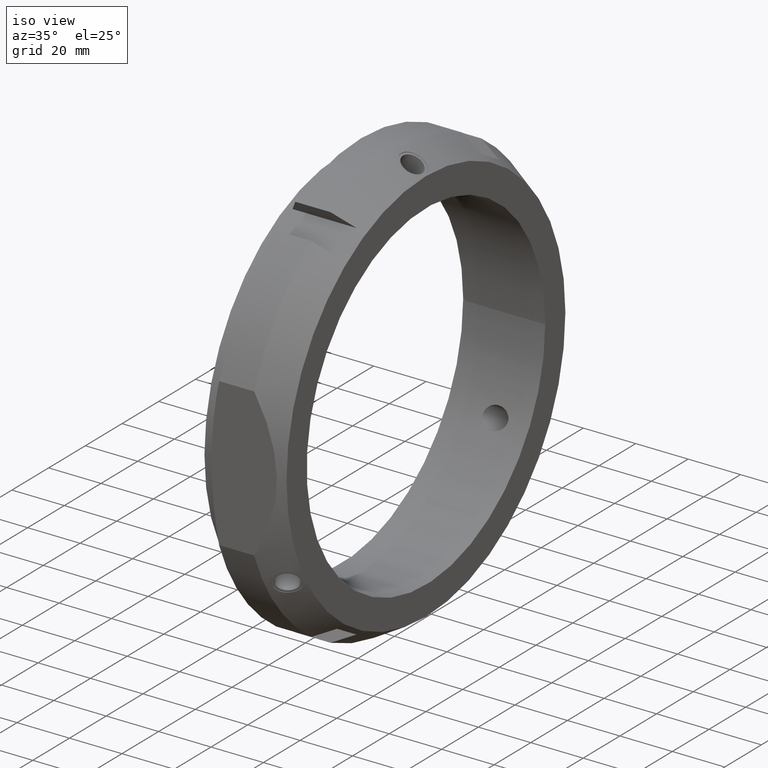
[diagram: clean part render]
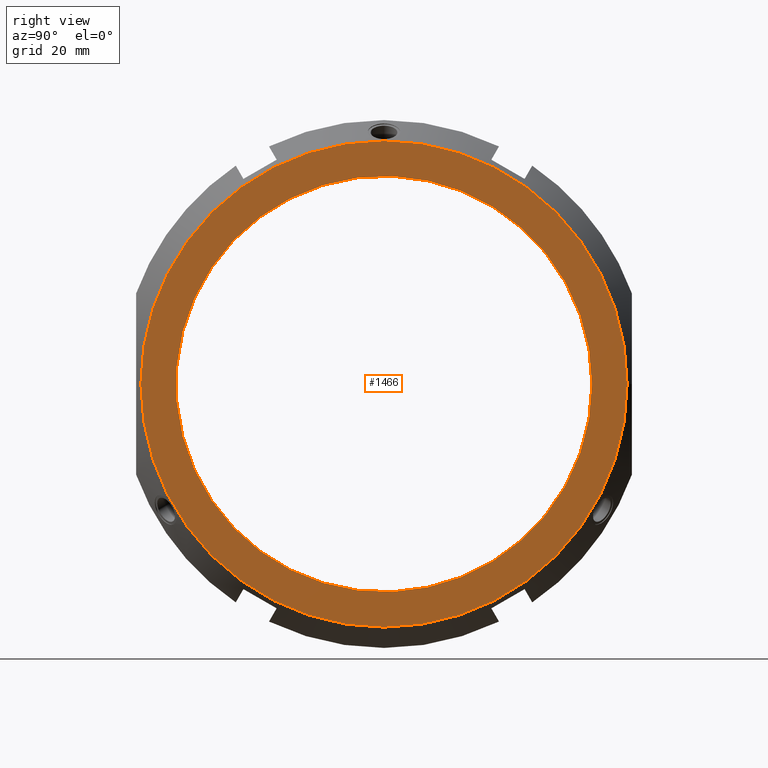
[diagram: tour spotlight — one face highlighted and labeled with its STEP entity id]
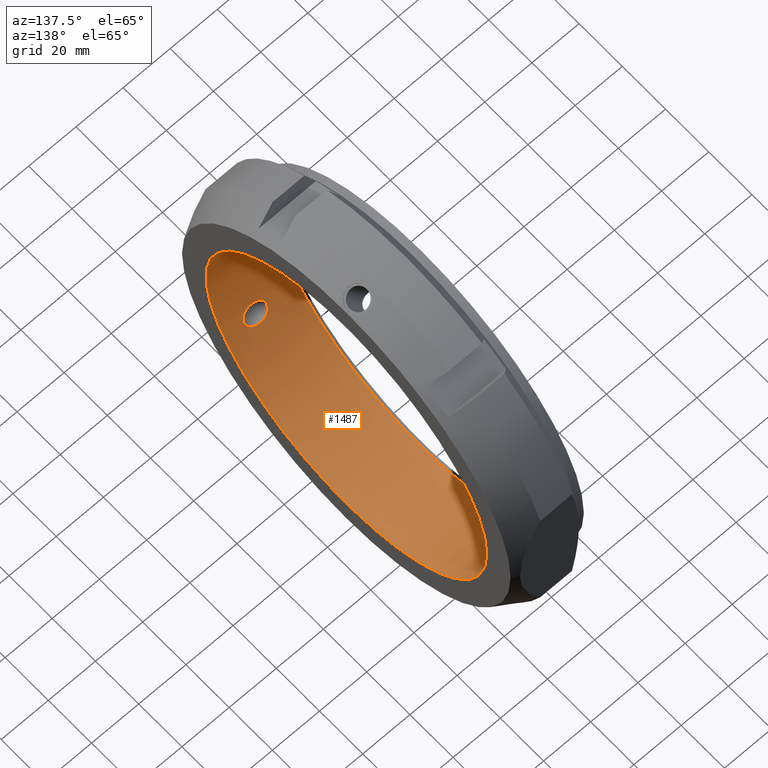
[diagram: tour spotlight — one face highlighted and labeled with its STEP entity id]
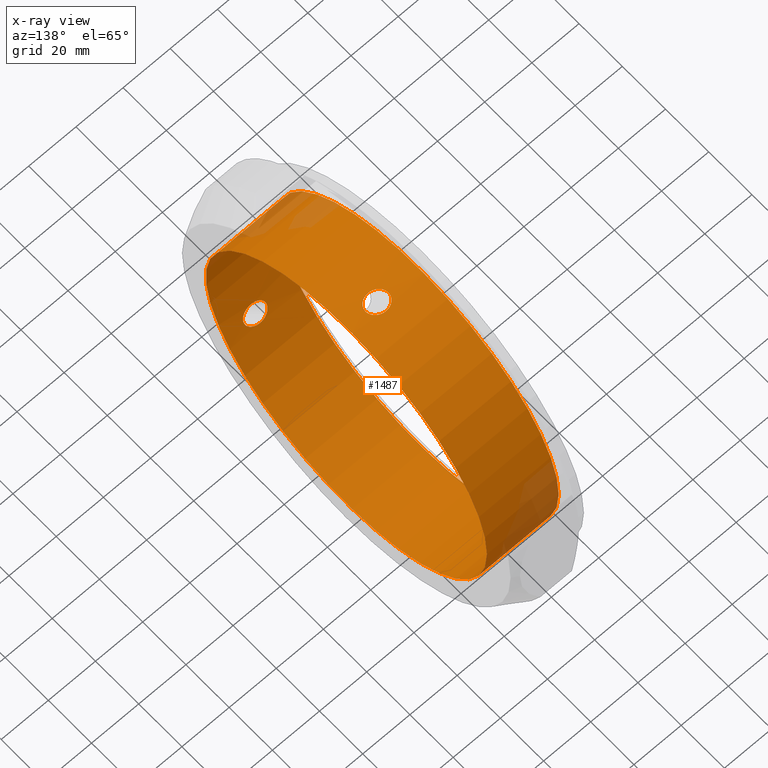
[diagram: x-ray of the same camera — body ghosted, this tour face saturated]
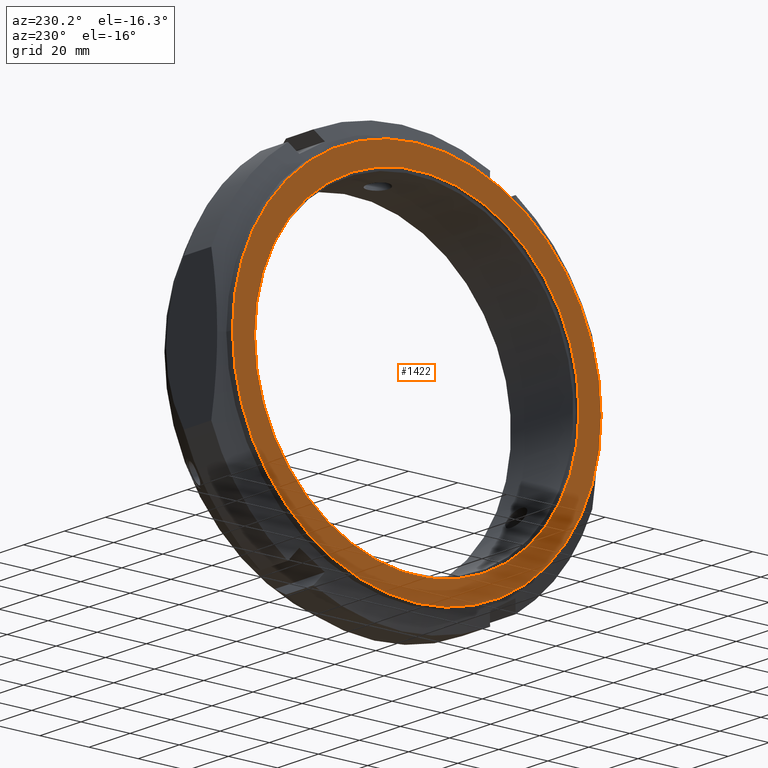
[diagram: tour spotlight — one face highlighted and labeled with its STEP entity id]
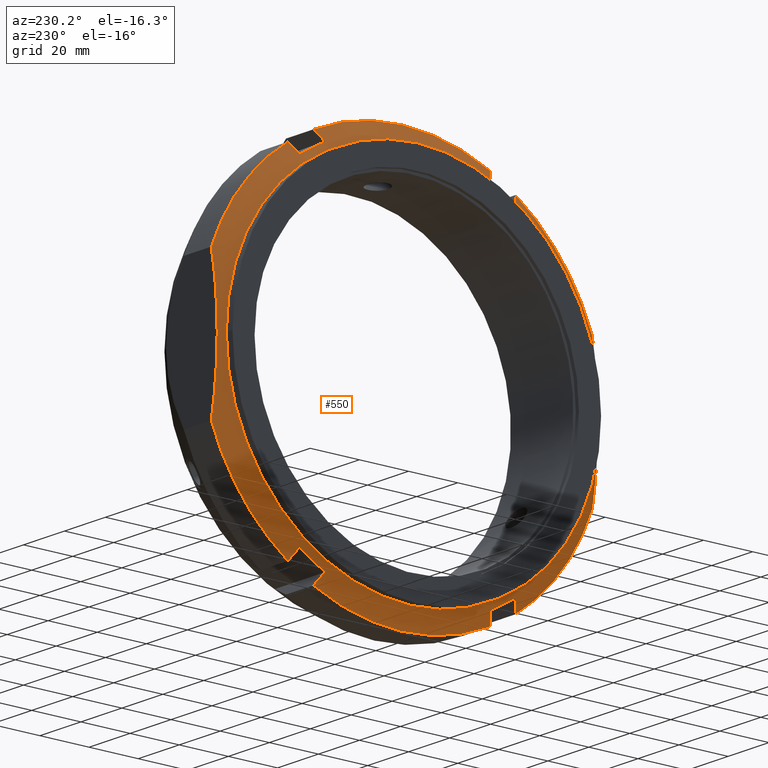
[diagram: tour spotlight — one face highlighted and labeled with its STEP entity id]
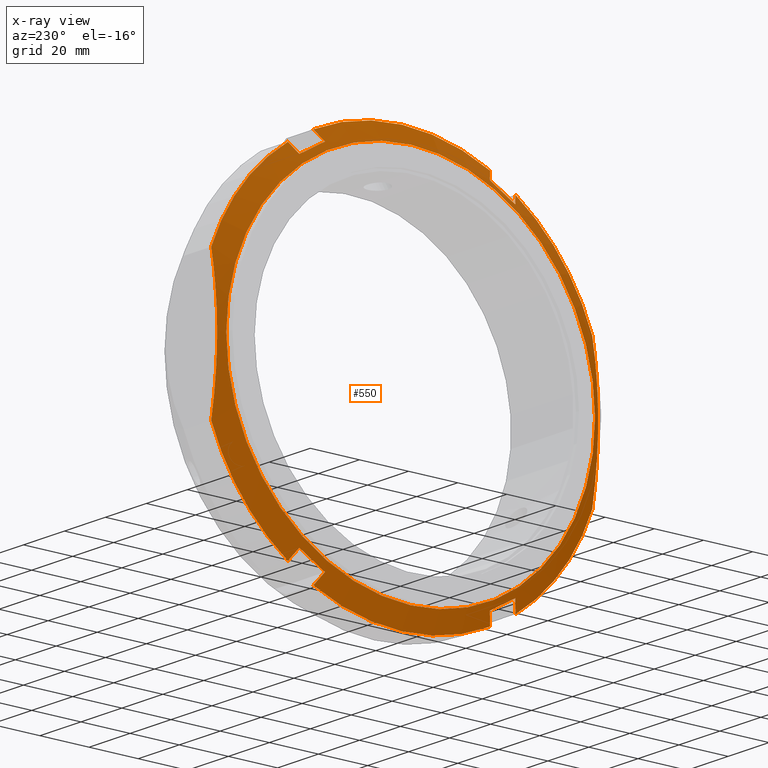
[diagram: x-ray of the same camera — body ghosted, this tour face saturated]
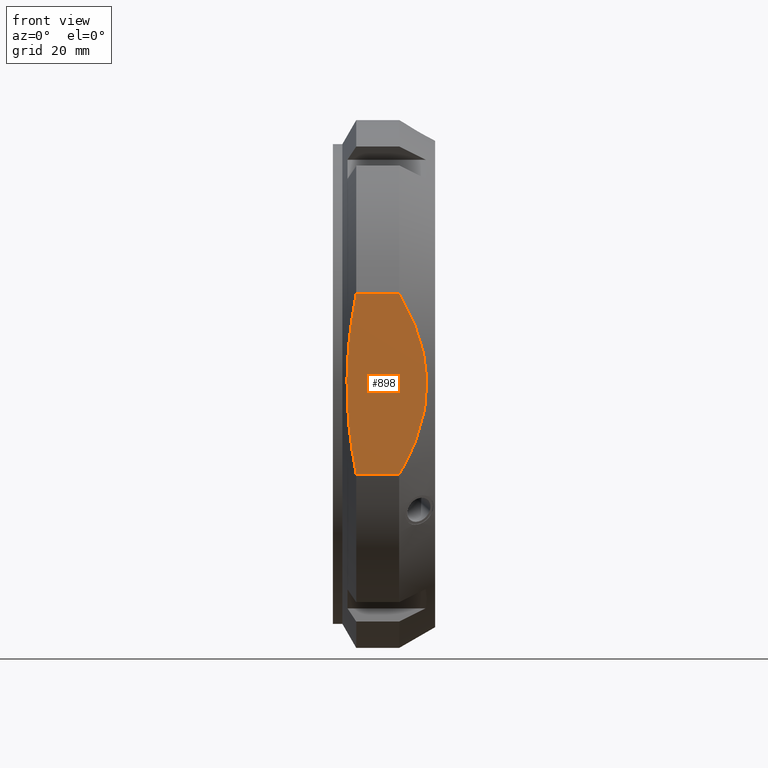
[diagram: tour spotlight — one face highlighted and labeled with its STEP entity id]
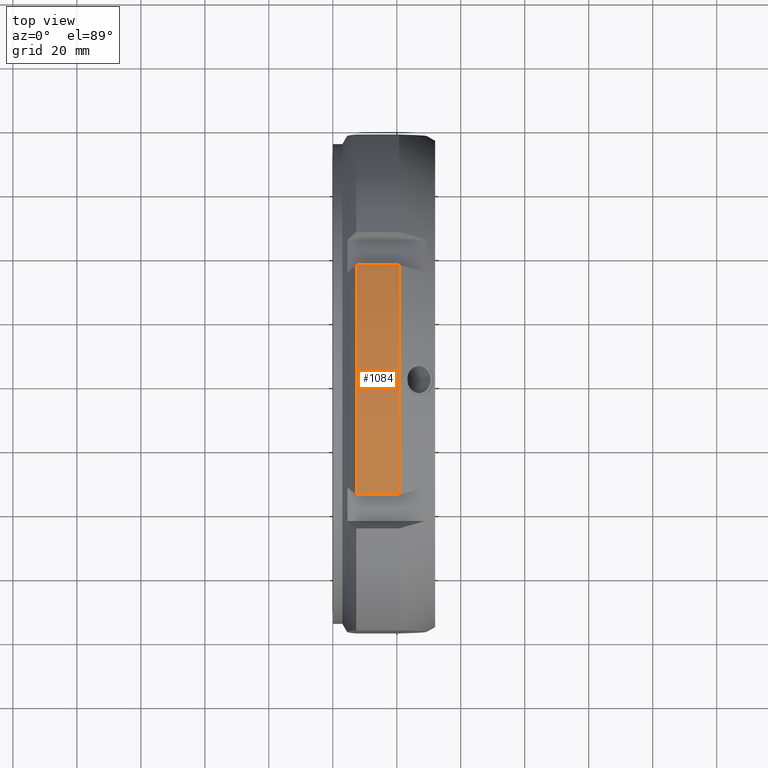
[diagram: tour spotlight — one face highlighted and labeled with its STEP entity id]
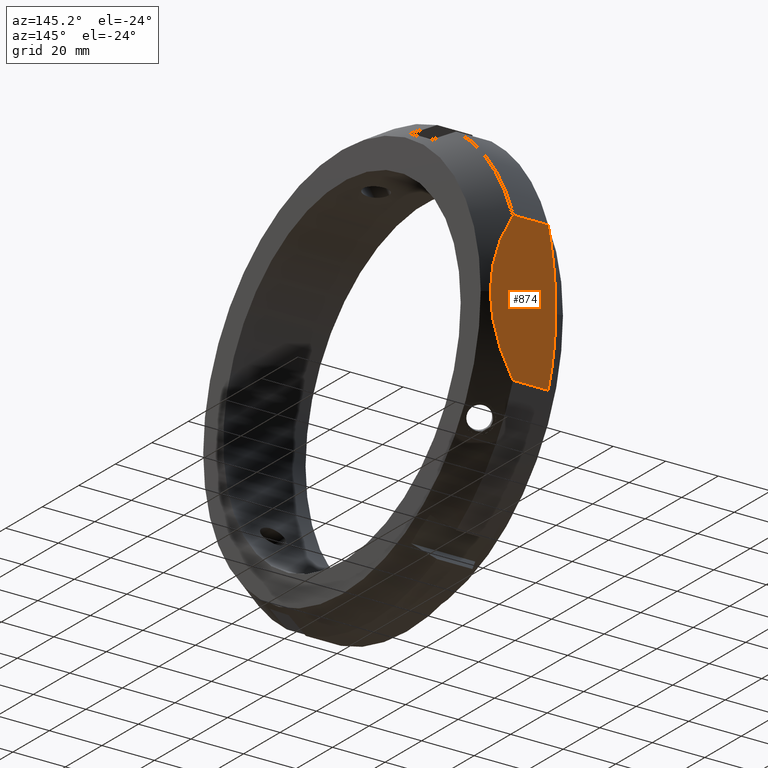
[diagram: tour spotlight — one face highlighted and labeled with its STEP entity id]
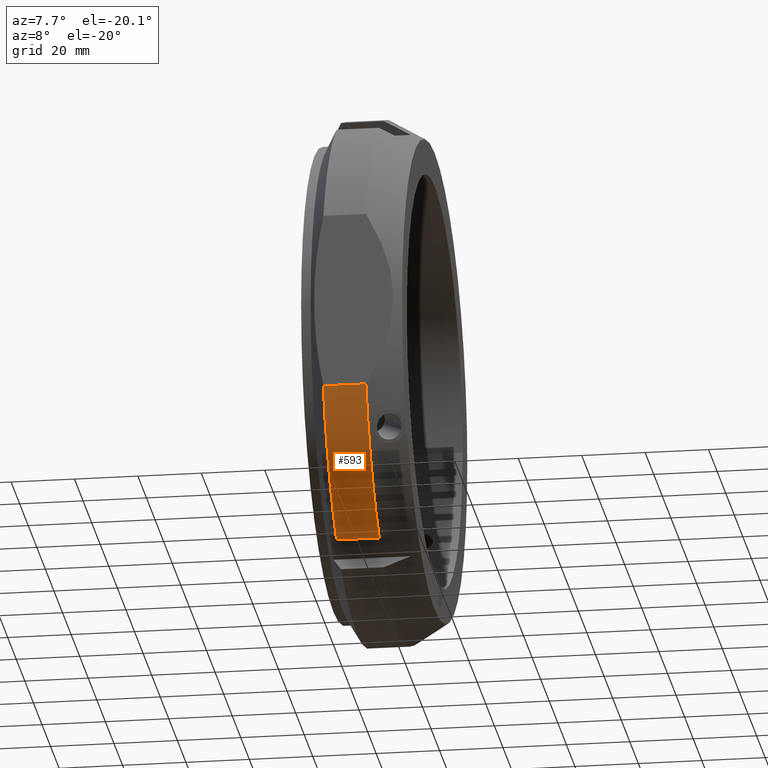
[diagram: tour spotlight — one face highlighted and labeled with its STEP entity id]
A machine part: a face-by-face anatomy tour. The part has 37 B-rep faces; the first image is the clean iso view, then the 8 largest visible faces are spotlighted one at a time (largest first), each with its STEP entity span.

Face 1 — right view, entity #1466. In plain terms, the highlighted planar face has unit normal (1, 0, 0).
Definition (entity closure, byte-faithful):
#938=CARTESIAN_POINT('',(31.999999999999986,76.0,0.0));
#939=VERTEX_POINT('',#938);
#940=CARTESIAN_POINT('',(31.999999999999986,0.0,0.0));
#941=DIRECTION('',(1.0,0.0,0.0));
#942=DIRECTION('',(0.0,1.0,0.0));
#943=AXIS2_PLACEMENT_3D('',#940,#941,#942);
#944=CIRCLE('',#943,76.0);
#945=EDGE_CURVE('',#939,#939,#944,.T.);
#1447=CARTESIAN_POINT('',(31.999999999999986,70.5,0.0));
#1448=DIRECTION('',(1.0,0.0,0.0));
#1449=DIRECTION('',(0.0,0.0,-1.0));
#1450=AXIS2_PLACEMENT_3D('',#1447,#1448,#1449);
#1451=PLANE('',#1450);
#1452=ORIENTED_EDGE('',*,*,#945,.T.);
#1453=EDGE_LOOP('',(#1452));
#1454=FACE_OUTER_BOUND('',#1453,.T.);
#1455=CARTESIAN_POINT('',(31.999999999999986,65.0,0.0));
#1456=VERTEX_POINT('',#1455);
#1457=CARTESIAN_POINT('',(31.999999999999986,0.0,0.0));
#1458=DIRECTION('',(1.0,0.0,0.0));
#1459=DIRECTION('',(0.0,1.0,0.0));
#1460=AXIS2_PLACEMENT_3D('',#1457,#1458,#1459);
#1461=CIRCLE('',#1460,65.0);
#1462=EDGE_CURVE('',#1456,#1456,#1461,.T.);
#1463=ORIENTED_EDGE('',*,*,#1462,.F.);
#1464=EDGE_LOOP('',(#1463));
#1465=FACE_BOUND('',#1464,.T.);
#1466=ADVANCED_FACE('',(#1454,#1465),#1451,.T.);

Face 2 — auxiliary view, entity #1487. An x-ray twin of the same camera follows (body ghosted, this face saturated) — the face is partly hidden behind the body. In plain terms, the highlighted cylindrical surface (bore or boss wall) has radius 65 mm, axis along (1, 0, 0).
Definition (entity closure, byte-faithful):
#1090=CARTESIAN_POINT('',(18.949791525899521,58.268687288849222,-28.805556436810946));
#1091=VERTEX_POINT('',#1090);
#1092=CARTESIAN_POINT('',(18.949791525899521,58.268687288849222,-28.805556436810946));
#1093=CARTESIAN_POINT('',(19.546106506333146,58.268687288849222,-28.805556436810946));
#1094=CARTESIAN_POINT('',(20.187992544273769,58.224201286156287,-28.896138006077138));
#1095=CARTESIAN_POINT('',(21.391641495849516,58.035616681620397,-29.273052516908749));
#1096=CARTESIAN_POINT('',(21.953392773721092,57.891252085530525,-29.559289476309925));
#1097=CARTESIAN_POINT('',(22.826069203701891,57.550981411766422,-30.21605422566153));
#1098=CARTESIAN_POINT('',(23.208133047378819,57.337762372380787,-30.62100986994691));
#1099=CARTESIAN_POINT('',(23.72745937554479,56.845355262369978,-31.525716891875945));
#1100=CARTESIAN_POINT('',(23.863653352058016,56.565483313993425,-32.025708945473838));
#1101=CARTESIAN_POINT('',(23.863653352058016,56.02986132548159,-32.953433443227411));
#1102=CARTESIAN_POINT('',(23.738995100665768,55.748709757503072,-33.426482279469823));
#1103=CARTESIAN_POINT('',(23.259122230442266,55.22962543788087,-34.277351565158241));
#1104=CARTESIAN_POINT('',(22.904937812378961,54.991794402338989,-34.65581464383542));
#1105=CARTESIAN_POINT('',(22.055508099497501,54.579927858906615,-35.30161431791408));
#1106=CARTESIAN_POINT('',(21.479126455155821,54.391212082827167,-35.589991847862208));
#1107=CARTESIAN_POINT('',(20.236374514679344,54.141446322588003,-35.968809563658553));
#1108=CARTESIAN_POINT('',(19.569987058709124,54.080687288849219,-36.059385218909405));
#1109=CARTESIAN_POINT('',(18.34520606450593,54.080687288849219,-36.059385218909405));
#1110=CARTESIAN_POINT('',(17.69471403346061,54.138668919639102,-35.972963604181018));
#1111=CARTESIAN_POINT('',(16.486451430670538,54.383862334529887,-35.601195211608875));
#1112=CARTESIAN_POINT('',(15.928834280232657,54.571036000379834,-35.315324869100074));
#1113=CARTESIAN_POINT('',(15.105512266562977,54.984353132818342,-34.667672512601335));
#1114=CARTESIAN_POINT('',(14.764621480098505,55.225611703696238,-34.283877742193376));
#1115=CARTESIAN_POINT('',(14.307657033176646,55.749014620027054,-33.426035212336259));
#1116=CARTESIAN_POINT('',(14.191881642593394,56.030884529326777,-32.951661202181015));
#1117=CARTESIAN_POINT('',(14.191881642593394,56.552417962650203,-32.048338797819021));
#1118=CARTESIAN_POINT('',(14.30765703317665,56.822302951689885,-31.5670452907254));
#1119=CARTESIAN_POINT('',(14.764621480098519,57.303514916827453,-30.684843803839495));
#1120=CARTESIAN_POINT('',(15.105512266562982,57.515261652401421,-30.284010367374535));
#1121=CARTESIAN_POINT('',(15.928834280232662,57.869486479730924,-29.602241052614087));
#1122=CARTESIAN_POINT('',(16.486451430670538,58.023470625607125,-29.297208731814173));
#1123=CARTESIAN_POINT('',(17.694714033460613,58.222834790453312,-28.898980809392025));
#1124=CARTESIAN_POINT('',(18.34520606450593,58.268687288849222,-28.805556436810949));
#1125=CARTESIAN_POINT('',(18.949791525899524,58.268687288849222,-28.805556436810949));
#1126=B_SPLINE_CURVE_WITH_KNOTS('',3,(#1092,#1093,#1094,#1095,#1096,#1097,#1098,#1099,#1100,#1101,#1102,#1103,#1104,#1105,#1106,#1107,#1108,#1109,#1110,#1111,#1112,#1113,#1114,#1115,#1116,#1117,#1118,#1119,#1120,#1121,#1122,#1123,#1124,#1125),.UNSPECIFIED.,.T.,.U.,(4,2,2,2,2,2,2,2,2,2,2,2,2,2,2,2,4),(0.0,0.178894494130088,0.357788988260176,0.522088229063131,0.686387469866086,0.843461422170234,1.000535374474382,1.186594034317261,1.372652694160141,1.554028332578219,1.735403970996297,1.891864000993321,2.048324030990345,2.204784060987371,2.361244090984396,2.542619729402473,2.72399536782055),.UNSPECIFIED.);
#1127=EDGE_CURVE('',#1091,#1091,#1126,.T.);
#1180=CARTESIAN_POINT('',(18.949791525899521,-54.080687288849241,-36.05938521890937));
#1181=VERTEX_POINT('',#1180);
#1182=CARTESIAN_POINT('',(18.949791525899521,-54.080687288849241,-36.05938521890937));
#1183=CARTESIAN_POINT('',(19.569987058709124,-54.080687288849241,-36.05938521890937));
#1184=CARTESIAN_POINT('',(20.236374514679348,-54.141446322588031,-35.968809563658517));
#1185=CARTESIAN_POINT('',(21.479126455155829,-54.391212082827202,-35.589991847862173));
#1186=CARTESIAN_POINT('',(22.055508099497505,-54.579927858906636,-35.301614317914051));
#1187=CARTESIAN_POINT('',(22.904937812378968,-54.991794402339018,-34.655814643835384));
#1188=CARTESIAN_POINT('',(23.259122230442266,-55.229625437880905,-34.277351565158206));
#1189=CARTESIAN_POINT('',(23.738995100665768,-55.748709757503107,-33.426482279469781));
#1190=CARTESIAN_POINT('',(23.863653352058023,-56.029861325481612,-32.953433443227375));
#1191=CARTESIAN_POINT('',(23.863653352058023,-56.553441166495439,-32.046566556772603));
#1192=CARTESIAN_POINT('',(23.738995100665775,-56.822537691922783,-31.56655773846817));
#1193=CARTESIAN_POINT('',(23.259122230442269,-57.299869948817772,-30.691582888124977));
#1194=CARTESIAN_POINT('',(22.904937812378961,-57.508713071575713,-30.296383630198758));
#1195=CARTESIAN_POINT('',(22.055508099497505,-57.862058723367362,-29.616796903578102));
#1196=CARTESIAN_POINT('',(21.479126455155821,-58.017443102143332,-29.309175482424344));
#1197=CARTESIAN_POINT('',(20.236374514679341,-58.220625987306974,-28.903463131163527));
#1198=CARTESIAN_POINT('',(19.569987058709124,-58.268687288849236,-28.805556436810917));
#1199=CARTESIAN_POINT('',(18.34520606450593,-58.268687288849236,-28.805556436810917));
#1200=CARTESIAN_POINT('',(17.694714033460606,-58.222834790453327,-28.898980809392));
#1201=CARTESIAN_POINT('',(16.486451430670535,-58.023470625607139,-29.297208731814148));
#1202=CARTESIAN_POINT('',(15.92883428023266,-57.869486479730945,-29.602241052614055));
#1203=CARTESIAN_POINT('',(15.105512266562982,-57.515261652401435,-30.284010367374506));
#1204=CARTESIAN_POINT('',(14.764621480098514,-57.30351491682746,-30.68484380383946));
#1205=CARTESIAN_POINT('',(14.307657033176646,-56.822302951689892,-31.567045290725364));
#1206=CARTESIAN_POINT('',(14.191881642593401,-56.552417962650225,-32.048338797818985));
#1207=CARTESIAN_POINT('',(14.191881642593401,-56.030884529326812,-32.951661202180986));
#1208=CARTESIAN_POINT('',(14.307657033176653,-55.749014620027069,-33.426035212336231));
#1209=CARTESIAN_POINT('',(14.764621480098514,-55.225611703696259,-34.283877742193347));
#1210=CARTESIAN_POINT('',(15.10551226656299,-54.98435313281837,-34.667672512601307));
#1211=CARTESIAN_POINT('',(15.928834280232671,-54.571036000379856,-35.315324869100053));
#1212=CARTESIAN_POINT('',(16.486451430670545,-54.383862334529908,-35.601195211608854));
#1213=CARTESIAN_POINT('',(17.694714033460617,-54.138668919639123,-35.97296360418099));
#1214=CARTESIAN_POINT('',(18.34520606450593,-54.080687288849241,-36.05938521890937));
#1215=CARTESIAN_POINT('',(18.949791525899521,-54.080687288849241,-36.05938521890937));
#1216=B_SPLINE_CURVE_WITH_KNOTS('',3,(#1182,#1183,#1184,#1185,#1186,#1187,#1188,#1189,#1190,#1191,#1192,#1193,#1194,#1195,#1196,#1197,#1198,#1199,#1200,#1201,#1202,#1203,#1204,#1205,#1206,#1207,#1208,#1209,#1210,#1211,#1212,#1213,#1214,#1215),.UNSPECIFIED.,.T.,.U.,(4,2,2,2,2,2,2,2,2,2,2,2,2,2,2,2,4),(0.0,0.18605865984288,0.37211731968576,0.529191271989908,0.686265224294055,0.843339176598203,1.00041312890235,1.18647178874523,1.37253044858811,1.553906087006187,1.735281725424264,1.891741755421289,2.048201785418314,2.20466181541534,2.361121845412364,2.542497483830442,2.723873122248518),.UNSPECIFIED.);
#1217=EDGE_CURVE('',#1181,#1181,#1216,.T.);
#1270=CARTESIAN_POINT('',(18.949791525899528,-4.188,64.864941655720301));
#1271=VERTEX_POINT('',#1270);
#1272=CARTESIAN_POINT('',(18.949791525899528,-4.188,64.864941655720301));
#1273=CARTESIAN_POINT('',(19.569987058709128,-4.188,64.864941655720301));
#1274=CARTESIAN_POINT('',(20.236374514679355,-4.079179664718941,64.872272694822058));
#1275=CARTESIAN_POINT('',(21.479126455155829,-3.626231019316133,64.899167330286531));
#1276=CARTESIAN_POINT('',(22.055508099497505,-3.282130864460732,64.918411221492178));
#1277=CARTESIAN_POINT('',(22.904937812378968,-2.516918669236713,64.952198274034174));
#1278=CARTESIAN_POINT('',(23.259122230442266,-2.070244510936868,64.968934453283211));
#1279=CARTESIAN_POINT('',(23.738995100665772,-1.07382793441968,64.993040017937986));
#1280=CARTESIAN_POINT('',(23.863653352058023,-0.523579841013826,65.0));
#1281=CARTESIAN_POINT('',(23.863653352058023,0.523579841013825,65.0));
#1282=CARTESIAN_POINT('',(23.738995100665772,1.073827934419676,64.993040017937972));
#1283=CARTESIAN_POINT('',(23.259122230442266,2.070244510936865,64.968934453283197));
#1284=CARTESIAN_POINT('',(22.904937812378968,2.516918669236714,64.952198274034174));
#1285=CARTESIAN_POINT('',(22.055508099497505,3.282130864460733,64.918411221492178));
#1286=CARTESIAN_POINT('',(21.479126455155829,3.626231019316133,64.899167330286531));
#1287=CARTESIAN_POINT('',(20.236374514679355,4.079179664718938,64.872272694822058));
#1288=CARTESIAN_POINT('',(19.569987058709128,4.188,64.864941655720315));
#1289=CARTESIAN_POINT('',(18.345206064505938,4.188,64.864941655720315));
#1290=CARTESIAN_POINT('',(17.694714033460617,4.084165870814204,64.871944413573004));
#1291=CARTESIAN_POINT('',(16.486451430670542,3.639608291077229,64.898403943423006));
#1292=CARTESIAN_POINT('',(15.928834280232667,3.298450479351081,64.917565921714129));
#1293=CARTESIAN_POINT('',(15.10551226656299,2.530908519583066,64.951682879975849));
#1294=CARTESIAN_POINT('',(14.764621480098521,2.077903213131218,64.968721546032839));
#1295=CARTESIAN_POINT('',(14.307657033176655,1.073288331662838,64.993080503061634));
#1296=CARTESIAN_POINT('',(14.191881642593405,0.521533433323418,65.0));
#1297=CARTESIAN_POINT('',(14.191881642593405,-0.521533433323416,65.0));
#1298=CARTESIAN_POINT('',(14.307657033176653,-1.073288331662839,64.993080503061634));
#1299=CARTESIAN_POINT('',(14.764621480098519,-2.077903213131219,64.968721546032839));
#1300=CARTESIAN_POINT('',(15.105512266562986,-2.530908519583067,64.951682879975849));
#1301=CARTESIAN_POINT('',(15.928834280232667,-3.298450479351083,64.917565921714129));
#1302=CARTESIAN_POINT('',(16.486451430670538,-3.639608291077227,64.898403943423006));
#1303=CARTESIAN_POINT('',(17.694714033460613,-4.084165870814204,64.871944413573004));
#1304=CARTESIAN_POINT('',(18.345206064505938,-4.188,64.864941655720315));
#1305=CARTESIAN_POINT('',(18.949791525899528,-4.188,64.864941655720315));
#1306=B_SPLINE_CURVE_WITH_KNOTS('',3,(#1272,#1273,#1274,#1275,#1276,#1277,#1278,#1279,#1280,#1281,#1282,#1283,#1284,#1285,#1286,#1287,#1288,#1289,#1290,#1291,#1292,#1293,#1294,#1295,#1296,#1297,#1298,#1299,#1300,#1301,#1302,#1303,#1304,#1305),.UNSPECIFIED.,.T.,.U.,(4,2,2,2,2,2,2,2,2,2,2,2,2,2,2,2,4),(0.0,0.18605865984288,0.37211731968576,0.529191271989907,0.686265224294055,0.843339176598203,1.00041312890235,1.18647178874523,1.37253044858811,1.553906087006187,1.735281725424265,1.891741755421289,2.048201785418314,2.20466181541534,2.361121845412364,2.542497483830442,2.723873122248519),.UNSPECIFIED.);
#1307=EDGE_CURVE('',#1271,#1271,#1306,.T.);
#1371=CARTESIAN_POINT('',(1.499999999999981,65.0,0.0));
#1372=VERTEX_POINT('',#1371);
#1373=CARTESIAN_POINT('',(1.499999999999981,0.0,0.0));
#1374=DIRECTION('',(1.0,0.0,0.0));
#1375=DIRECTION('',(0.0,1.0,0.0));
#1376=AXIS2_PLACEMENT_3D('',#1373,#1374,#1375);
#1377=CIRCLE('',#1376,65.0);
#1378=EDGE_CURVE('',#1372,#1372,#1377,.T.);
#1455=CARTESIAN_POINT('',(31.999999999999986,65.0,0.0));
#1456=VERTEX_POINT('',#1455);
#1457=CARTESIAN_POINT('',(31.999999999999986,0.0,0.0));
#1458=DIRECTION('',(1.0,0.0,0.0));
#1459=DIRECTION('',(0.0,1.0,0.0));
#1460=AXIS2_PLACEMENT_3D('',#1457,#1458,#1459);
#1461=CIRCLE('',#1460,65.0);
#1462=EDGE_CURVE('',#1456,#1456,#1461,.T.);
#1467=CARTESIAN_POINT('',(16.749999999999982,0.0,0.0));
#1468=DIRECTION('',(1.0,0.0,0.0));
#1469=DIRECTION('',(0.0,1.0,0.0));
#1470=AXIS2_PLACEMENT_3D('',#1467,#1468,#1469);
#1471=CYLINDRICAL_SURFACE('',#1470,65.0);
#1472=ORIENTED_EDGE('',*,*,#1378,.F.);
#1473=EDGE_LOOP('',(#1472));
#1474=FACE_OUTER_BOUND('',#1473,.T.);
#1475=ORIENTED_EDGE('',*,*,#1127,.T.);
#1476=EDGE_LOOP('',(#1475));
#1477=FACE_BOUND('',#1476,.T.);
#1478=ORIENTED_EDGE('',*,*,#1217,.T.);
#1479=EDGE_LOOP('',(#1478));
#1480=FACE_BOUND('',#1479,.T.);
#1481=ORIENTED_EDGE('',*,*,#1307,.T.);
#1482=EDGE_LOOP('',(#1481));
#1483=FACE_BOUND('',#1482,.T.);
#1484=ORIENTED_EDGE('',*,*,#1462,.T.);
#1485=EDGE_LOOP('',(#1484));
#1486=FACE_BOUND('',#1485,.T.);
#1487=ADVANCED_FACE('',(#1474,#1477,#1480,#1483,#1486),#1471,.F.);

Face 3 — auxiliary view, entity #1422. In plain terms, the highlighted planar face has unit normal (-1, 0, 0).
Definition (entity closure, byte-faithful):
#1388=CARTESIAN_POINT('',(-1.942890E-014,66.0,0.0));
#1389=VERTEX_POINT('',#1388);
#1390=CARTESIAN_POINT('',(-1.942890E-014,0.0,0.0));
#1391=DIRECTION('',(1.0,0.0,0.0));
#1392=DIRECTION('',(0.0,1.0,0.0));
#1393=AXIS2_PLACEMENT_3D('',#1390,#1391,#1392);
#1394=CIRCLE('',#1393,66.0);
#1395=EDGE_CURVE('',#1389,#1389,#1394,.T.);
#1403=CARTESIAN_POINT('',(-2.081668E-014,70.5,0.0));
#1404=DIRECTION('',(-1.0,0.0,0.0));
#1405=DIRECTION('',(0.0,0.0,1.0));
#1406=AXIS2_PLACEMENT_3D('',#1403,#1404,#1405);
#1407=PLANE('',#1406);
#1408=CARTESIAN_POINT('',(-2.220446E-014,75.0,0.0));
#1409=VERTEX_POINT('',#1408);
#1410=CARTESIAN_POINT('',(-2.220446E-014,0.0,0.0));
#1411=DIRECTION('',(1.0,0.0,0.0));
#1412=DIRECTION('',(0.0,1.0,0.0));
#1413=AXIS2_PLACEMENT_3D('',#1410,#1411,#1412);
#1414=CIRCLE('',#1413,75.0);
#1415=EDGE_CURVE('',#1409,#1409,#1414,.T.);
#1416=ORIENTED_EDGE('',*,*,#1415,.F.);
#1417=EDGE_LOOP('',(#1416));
#1418=FACE_OUTER_BOUND('',#1417,.T.);
#1419=ORIENTED_EDGE('',*,*,#1395,.T.);
#1420=EDGE_LOOP('',(#1419));
#1421=FACE_BOUND('',#1420,.T.);
#1422=ADVANCED_FACE('',(#1418,#1421),#1407,.T.);

Face 4 — auxiliary view, entity #550. An x-ray twin of the same camera follows (body ghosted, this face saturated) — the face is partly hidden behind the body. In plain terms, the highlighted conical surface has half-angle 60 deg.
Definition (entity closure, byte-faithful):
#73=CARTESIAN_POINT('',(4.577269596886642,43.946152422706525,-64.116968793294063));
#74=VERTEX_POINT('',#73);
#75=CARTESIAN_POINT('',(4.577269596886655,33.553847577293261,-70.116968793294049));
#76=VERTEX_POINT('',#75);
#77=CARTESIAN_POINT('',(4.577269596886642,43.946152422706525,-64.116968793294063));
#78=CARTESIAN_POINT('',(4.309881218014403,38.749999999921442,-67.116968793339353));
#79=CARTESIAN_POINT('',(4.577269596886655,33.553847577293261,-70.116968793294049));
#87=(BOUNDED_CURVE()B_SPLINE_CURVE(2,(#77,#78,#79),.UNSPECIFIED.,.F.,.U.)B_SPLINE_CURVE_WITH_KNOTS((3,3),(2.221478164812504,3.464762538264855),.UNSPECIFIED.)CURVE()GEOMETRIC_REPRESENTATION_ITEM()RATIONAL_B_SPLINE_CURVE((1.030715906850744,1.033800222181514,1.030715906850744))REPRESENTATION_ITEM(''));
#88=EDGE_CURVE('',#74,#76,#87,.T.);
#127=CARTESIAN_POINT('',(7.330127018922158,35.944612033000681,-74.257894299509076));
#128=VERTEX_POINT('',#127);
#129=CARTESIAN_POINT('',(4.577269596886655,33.553847577293261,-70.116968793294049));
#130=CARTESIAN_POINT('',(5.912508104461267,34.713658309282891,-72.12581990826375));
#131=CARTESIAN_POINT('',(7.330127018922167,35.944612033000681,-74.25789429950909));
#139=(BOUNDED_CURVE()B_SPLINE_CURVE(2,(#129,#130,#131),.UNSPECIFIED.,.F.,.U.)B_SPLINE_CURVE_WITH_KNOTS((3,3),(0.588050273375813,1.122238721192972),.UNSPECIFIED.)CURVE()GEOMETRIC_REPRESENTATION_ITEM()RATIONAL_B_SPLINE_CURVE((1.000981163623097,1.000936229315347,1.0))REPRESENTATION_ITEM(''));
#140=EDGE_CURVE('',#76,#128,#139,.T.);
#172=CARTESIAN_POINT('',(7.330127018922161,46.336916878413952,-68.257894299509076));
#173=VERTEX_POINT('',#172);
#174=CARTESIAN_POINT('',(7.330127018922166,46.336916878413952,-68.257894299509104));
#175=CARTESIAN_POINT('',(5.912508104406109,45.105963154648222,-66.125819908180745));
#176=CARTESIAN_POINT('',(4.577269596886642,43.946152422706525,-64.116968793294063));
#184=(BOUNDED_CURVE()B_SPLINE_CURVE(2,(#174,#175,#176),.UNSPECIFIED.,.F.,.U.)B_SPLINE_CURVE_WITH_KNOTS((3,3),(0.0,0.534188447797887),.UNSPECIFIED.)CURVE()GEOMETRIC_REPRESENTATION_ITEM()RATIONAL_B_SPLINE_CURVE((1.0,1.000936229326046,1.000981163634341))REPRESENTATION_ITEM(''));
#185=EDGE_CURVE('',#173,#74,#184,.T.);
#217=CARTESIAN_POINT('',(4.57726959688666,-43.946152422706668,-64.116968793293992));
#218=VERTEX_POINT('',#217);
#219=CARTESIAN_POINT('',(7.330127018922161,-46.336916878414065,-68.257894299509019));
#220=VERTEX_POINT('',#219);
#221=CARTESIAN_POINT('',(4.57726959688666,-43.946152422706668,-64.116968793293992));
#222=CARTESIAN_POINT('',(5.912508103320219,-45.105963153704785,-66.125819906546354));
#223=CARTESIAN_POINT('',(7.330127018922166,-46.336916878414065,-68.257894299509005));
#231=(BOUNDED_CURVE()B_SPLINE_CURVE(2,(#221,#222,#223),.UNSPECIFIED.,.F.,.U.)B_SPLINE_CURVE_WITH_KNOTS((3,3),(0.588050273836585,1.122238721192972),.UNSPECIFIED.)CURVE()GEOMETRIC_REPRESENTATION_ITEM()RATIONAL_B_SPLINE_CURVE((1.000981163752435,1.000936229438029,1.0))REPRESENTATION_ITEM(''));
#232=EDGE_CURVE('',#218,#220,#231,.T.);
#271=CARTESIAN_POINT('',(7.330127018922163,-35.944612033000801,-74.257894299509019));
#272=VERTEX_POINT('',#271);
#273=CARTESIAN_POINT('',(4.577269596886655,-33.553847577293404,-70.116968793293978));
#274=VERTEX_POINT('',#273);
#275=CARTESIAN_POINT('',(7.330127018922166,-35.944612033000794,-74.257894299509019));
#276=CARTESIAN_POINT('',(5.912508103719746,-34.713658308638685,-72.125819907147672));
#277=CARTESIAN_POINT('',(4.577269596886655,-33.553847577293404,-70.116968793293978));
#285=(BOUNDED_CURVE()B_SPLINE_CURVE(2,(#275,#276,#277),.UNSPECIFIED.,.F.,.U.)B_SPLINE_CURVE_WITH_KNOTS((3,3),(0.0,0.534188447520295),.UNSPECIFIED.)CURVE()GEOMETRIC_REPRESENTATION_ITEM()RATIONAL_B_SPLINE_CURVE((1.0,1.00093622939916,1.000981163711427))REPRESENTATION_ITEM(''));
#286=EDGE_CURVE('',#272,#274,#285,.T.);
#325=CARTESIAN_POINT('',(4.577269596886655,-33.553847577293404,-70.116968793293978));
#326=CARTESIAN_POINT('',(4.30988121801441,-38.750000000078479,-67.116968793248688));
#327=CARTESIAN_POINT('',(4.57726959688666,-43.946152422706668,-64.116968793293992));
#335=(BOUNDED_CURVE()B_SPLINE_CURVE(2,(#325,#326,#327),.UNSPECIFIED.,.F.,.U.)B_SPLINE_CURVE_WITH_KNOTS((3,3),(2.221478164812497,3.464762538264848),.UNSPECIFIED.)CURVE()GEOMETRIC_REPRESENTATION_ITEM()RATIONAL_B_SPLINE_CURVE((1.030715906850744,1.033800222181514,1.030715906850744))REPRESENTATION_ITEM(''));
#336=EDGE_CURVE('',#274,#218,#335,.T.);
#356=CARTESIAN_POINT('',(5.165063509461071,0.0,0.0));
#357=DIRECTION('',(1.0,0.0,0.0));
#358=DIRECTION('',(0.0,1.0,0.0));
#359=AXIS2_PLACEMENT_3D('',#356,#357,#358);
#360=CONICAL_SURFACE('',#359,78.75,60.000000000000043);
#361=CARTESIAN_POINT('',(2.999999999999978,75.0,0.0));
#362=VERTEX_POINT('',#361);
#363=CARTESIAN_POINT('',(2.999999999999978,0.0,0.0));
#364=DIRECTION('',(1.0,0.0,0.0));
#365=DIRECTION('',(0.0,1.0,0.0));
#366=AXIS2_PLACEMENT_3D('',#363,#364,#365);
#367=CIRCLE('',#366,75.0);
#368=EDGE_CURVE('',#362,#362,#367,.T.);
#369=ORIENTED_EDGE('',*,*,#368,.T.);
#370=EDGE_LOOP('',(#369));
#371=FACE_OUTER_BOUND('',#370,.T.);
#372=ORIENTED_EDGE('',*,*,#185,.T.);
#373=ORIENTED_EDGE('',*,*,#88,.T.);
#374=ORIENTED_EDGE('',*,*,#140,.T.);
#375=CARTESIAN_POINT('',(7.330127018922164,0.0,0.0));
#376=DIRECTION('',(1.0,0.0,0.0));
#377=DIRECTION('',(0.0,1.0,0.0));
#378=AXIS2_PLACEMENT_3D('',#375,#376,#377);
#379=CIRCLE('',#378,82.5);
#380=EDGE_CURVE('',#272,#128,#379,.T.);
#381=ORIENTED_EDGE('',*,*,#380,.F.);
#382=ORIENTED_EDGE('',*,*,#286,.T.);
#383=ORIENTED_EDGE('',*,*,#336,.T.);
#384=ORIENTED_EDGE('',*,*,#232,.T.);
#385=CARTESIAN_POINT('',(7.330127018922164,-77.500000000000028,-28.284271247461827));
#386=VERTEX_POINT('',#385);
#387=CARTESIAN_POINT('',(7.330127018922164,0.0,0.0));
#388=DIRECTION('',(1.0,0.0,0.0));
#389=DIRECTION('',(0.0,1.0,0.0));
#390=AXIS2_PLACEMENT_3D('',#387,#388,#389);
#391=CIRCLE('',#390,82.5);
#392=EDGE_CURVE('',#386,#220,#391,.T.);
#393=ORIENTED_EDGE('',*,*,#392,.F.);
#394=CARTESIAN_POINT('',(7.330127018922164,-77.500000000000043,28.284271247461774));
#395=VERTEX_POINT('',#394);
#396=CARTESIAN_POINT('',(7.330127018922164,-77.500000000000028,-28.284271247461845));
#397=CARTESIAN_POINT('',(1.73157895405311,-77.500000000000028,-3.378083E-014));
#398=CARTESIAN_POINT('',(7.330127018922164,-77.500000000000043,28.284271247461781));
#406=(BOUNDED_CURVE()B_SPLINE_CURVE(2,(#396,#397,#398),.UNSPECIFIED.,.F.,.U.)B_SPLINE_CURVE_WITH_KNOTS((3,3),(0.0,5.686240703077309),.UNSPECIFIED.)CURVE()GEOMETRIC_REPRESENTATION_ITEM()RATIONAL_B_SPLINE_CURVE((1.0,1.064516129032257,1.0))REPRESENTATION_ITEM(''));
#407=EDGE_CURVE('',#386,#395,#406,.T.);
#408=ORIENTED_EDGE('',*,*,#407,.T.);
#409=CARTESIAN_POINT('',(7.330127018922164,-46.336916878414065,68.257894299509019));
#410=VERTEX_POINT('',#409);
#411=CARTESIAN_POINT('',(7.330127018922164,0.0,0.0));
#412=DIRECTION('',(1.0,0.0,0.0));
#413=DIRECTION('',(0.0,1.0,0.0));
#414=AXIS2_PLACEMENT_3D('',#411,#412,#413);
#415=CIRCLE('',#414,82.5);
#416=EDGE_CURVE('',#410,#395,#415,.T.);
#417=ORIENTED_EDGE('',*,*,#416,.F.);
#418=CARTESIAN_POINT('',(4.57726959688666,-43.946152422706668,64.116968793293992));
#419=VERTEX_POINT('',#418);
#420=CARTESIAN_POINT('',(7.330127018922164,-46.336916878414065,68.257894299509005));
#421=CARTESIAN_POINT('',(5.912508103323013,-45.105963153707208,66.125819906550561));
#422=CARTESIAN_POINT('',(4.57726959688666,-43.946152422706668,64.116968793293992));
#430=(BOUNDED_CURVE()B_SPLINE_CURVE(2,(#420,#421,#422),.UNSPECIFIED.,.F.,.U.)B_SPLINE_CURVE_WITH_KNOTS((3,3),(0.0,0.534188447356714),.UNSPECIFIED.)CURVE()GEOMETRIC_REPRESENTATION_ITEM()RATIONAL_B_SPLINE_CURVE((1.0,1.000936229436454,1.000981163750784))REPRESENTATION_ITEM(''));
#431=EDGE_CURVE('',#410,#419,#430,.T.);
#432=ORIENTED_EDGE('',*,*,#431,.T.);
#433=CARTESIAN_POINT('',(4.577269596886655,-33.553847577293404,70.116968793293978));
#434=VERTEX_POINT('',#433);
#435=CARTESIAN_POINT('',(4.57726959688666,-43.946152422706668,64.116968793293992));
#436=CARTESIAN_POINT('',(4.309881218014412,-38.74999999992157,67.116968793339282));
#437=CARTESIAN_POINT('',(4.577269596886655,-33.553847577293404,70.116968793293978));
#445=(BOUNDED_CURVE()B_SPLINE_CURVE(2,(#435,#436,#437),.UNSPECIFIED.,.F.,.U.)B_SPLINE_CURVE_WITH_KNOTS((3,3),(2.221478164812481,3.464762538264831),.UNSPECIFIED.)CURVE()GEOMETRIC_REPRESENTATION_ITEM()RATIONAL_B_SPLINE_CURVE((1.030715906850744,1.033800222181514,1.030715906850744))REPRESENTATION_ITEM(''));
#446=EDGE_CURVE('',#419,#434,#445,.T.);
#447=ORIENTED_EDGE('',*,*,#446,.T.);
#448=CARTESIAN_POINT('',(7.330127018922164,-35.944612033000794,74.257894299509019));
#449=VERTEX_POINT('',#448);
#450=CARTESIAN_POINT('',(4.577269596886655,-33.553847577293404,70.116968793293978));
#451=CARTESIAN_POINT('',(5.912508103735977,-34.713658308652789,72.125819907172101));
#452=CARTESIAN_POINT('',(7.330127018922164,-35.944612033000794,74.257894299509019));
#460=(BOUNDED_CURVE()B_SPLINE_CURVE(2,(#450,#451,#452),.UNSPECIFIED.,.F.,.U.)B_SPLINE_CURVE_WITH_KNOTS((3,3),(0.588050273671913,1.12223872119297),.UNSPECIFIED.)CURVE()GEOMETRIC_REPRESENTATION_ITEM()RATIONAL_B_SPLINE_CURVE((1.000981163699942,1.000936229388202,1.0))REPRESENTATION_ITEM(''));
#461=EDGE_CURVE('',#434,#449,#460,.T.);
#462=ORIENTED_EDGE('',*,*,#461,.T.);
#463=CARTESIAN_POINT('',(7.330127018922164,35.944612033000674,74.257894299509076));
#464=VERTEX_POINT('',#463);
#465=CARTESIAN_POINT('',(7.330127018922164,0.0,0.0));
#466=DIRECTION('',(1.0,0.0,0.0));
#467=DIRECTION('',(0.0,1.0,0.0));
#468=AXIS2_PLACEMENT_3D('',#465,#466,#467);
#469=CIRCLE('',#468,82.5);
#470=EDGE_CURVE('',#464,#449,#469,.T.);
#471=ORIENTED_EDGE('',*,*,#470,.F.);
#472=CARTESIAN_POINT('',(4.577269596886655,33.553847577293261,70.116968793294049));
#473=VERTEX_POINT('',#472);
#474=CARTESIAN_POINT('',(7.330127018922166,35.944612033000681,74.25789429950909));
#475=CARTESIAN_POINT('',(5.912508104461274,34.713658309282891,72.12581990826375));
#476=CARTESIAN_POINT('',(4.577269596886655,33.553847577293261,70.116968793294049));
#484=(BOUNDED_CURVE()B_SPLINE_CURVE(2,(#474,#475,#476),.UNSPECIFIED.,.F.,.U.)B_SPLINE_CURVE_WITH_KNOTS((3,3),(0.0,0.534188447817159),.UNSPECIFIED.)CURVE()GEOMETRIC_REPRESENTATION_ITEM()RATIONAL_B_SPLINE_CURVE((1.0,1.000936229315344,1.000981163623093))REPRESENTATION_ITEM(''));
#485=EDGE_CURVE('',#464,#473,#484,.T.);
#486=ORIENTED_EDGE('',*,*,#485,.T.);
#487=CARTESIAN_POINT('',(4.577269596886642,43.946152422706525,64.116968793294063));
#488=VERTEX_POINT('',#487);
#489=CARTESIAN_POINT('',(4.577269596886655,33.553847577293261,70.116968793294049));
#490=CARTESIAN_POINT('',(4.309881218014399,38.750000000078344,67.116968793248745));
#491=CARTESIAN_POINT('',(4.577269596886642,43.946152422706525,64.116968793294063));
#499=(BOUNDED_CURVE()B_SPLINE_CURVE(2,(#489,#490,#491),.UNSPECIFIED.,.F.,.U.)B_SPLINE_CURVE_WITH_KNOTS((3,3),(2.221478164812481,3.464762538264831),.UNSPECIFIED.)CURVE()GEOMETRIC_REPRESENTATION_ITEM()RATIONAL_B_SPLINE_CURVE((1.030715906850744,1.033800222181514,1.030715906850745))REPRESENTATION_ITEM(''));
#500=EDGE_CURVE('',#473,#488,#499,.T.);
#501=ORIENTED_EDGE('',*,*,#500,.T.);
#502=CARTESIAN_POINT('',(7.330127018922164,46.336916878413952,68.257894299509104));
#503=VERTEX_POINT('',#502);
#504=CARTESIAN_POINT('',(4.577269596886642,43.946152422706525,64.116968793294063));
#505=CARTESIAN_POINT('',(5.912508104405271,45.105963154647498,66.125819908179494));
#506=CARTESIAN_POINT('',(7.330127018922164,46.336916878413952,68.257894299509104));
#514=(BOUNDED_CURVE()B_SPLINE_CURVE(2,(#504,#505,#506),.UNSPECIFIED.,.F.,.U.)B_SPLINE_CURVE_WITH_KNOTS((3,3),(0.588050273394877,1.122238721192972),.UNSPECIFIED.)CURVE()GEOMETRIC_REPRESENTATION_ITEM()RATIONAL_B_SPLINE_CURVE((1.000981163635342,1.000936229327001,1.0))REPRESENTATION_ITEM(''));
#515=EDGE_CURVE('',#488,#503,#514,.T.);
#516=ORIENTED_EDGE('',*,*,#515,.T.);
#517=CARTESIAN_POINT('',(7.330127018922164,77.500000000000043,28.284271247461774));
#518=VERTEX_POINT('',#517);
#519=CARTESIAN_POINT('',(7.330127018922164,0.0,0.0));
#520=DIRECTION('',(1.0,0.0,0.0));
#521=DIRECTION('',(0.0,1.0,0.0));
#522=AXIS2_PLACEMENT_3D('',#519,#520,#521);
#523=CIRCLE('',#522,82.5);
#524=EDGE_CURVE('',#518,#503,#523,.T.);
#525=ORIENTED_EDGE('',*,*,#524,.F.);
#526=CARTESIAN_POINT('',(7.330127018922164,77.500000000000028,-28.284271247461827));
#527=VERTEX_POINT('',#526);
#528=CARTESIAN_POINT('',(7.330127018922164,77.500000000000043,28.284271247461778));
#529=CARTESIAN_POINT('',(1.731578954053109,77.500000000000028,-3.869586E-014));
#530=CARTESIAN_POINT('',(7.330127018922161,77.500000000000028,-28.284271247461845));
#538=(BOUNDED_CURVE()B_SPLINE_CURVE(2,(#528,#529,#530),.UNSPECIFIED.,.F.,.U.)B_SPLINE_CURVE_WITH_KNOTS((3,3),(0.0,5.686240703077308),.UNSPECIFIED.)CURVE()GEOMETRIC_REPRESENTATION_ITEM()RATIONAL_B_SPLINE_CURVE((1.0,1.064516129032255,1.0))REPRESENTATION_ITEM(''));
#539=EDGE_CURVE('',#518,#527,#538,.T.);
#540=ORIENTED_EDGE('',*,*,#539,.T.);
#541=CARTESIAN_POINT('',(7.330127018922164,0.0,0.0));
#542=DIRECTION('',(1.0,0.0,0.0));
#543=DIRECTION('',(0.0,1.0,0.0));
#544=AXIS2_PLACEMENT_3D('',#541,#542,#543);
#545=CIRCLE('',#544,82.5);
#546=EDGE_CURVE('',#173,#527,#545,.T.);
#547=ORIENTED_EDGE('',*,*,#546,.F.);
#548=EDGE_LOOP('',(#372,#373,#374,#381,#382,#383,#384,#393,#408,#417,#432,#447,#462,#471,#486,#501,#516,#525,#540,#547));
#549=FACE_BOUND('',#548,.T.);
#550=ADVANCED_FACE('',(#371,#549),#360,.T.);

Face 5 — front view, entity #898. In plain terms, the highlighted planar face has unit normal (0, 1, 0).
Definition (entity closure, byte-faithful):
#385=CARTESIAN_POINT('',(7.330127018922164,-77.500000000000028,-28.284271247461827));
#386=VERTEX_POINT('',#385);
#394=CARTESIAN_POINT('',(7.330127018922164,-77.500000000000043,28.284271247461774));
#395=VERTEX_POINT('',#394);
#396=CARTESIAN_POINT('',(7.330127018922164,-77.500000000000028,-28.284271247461845));
#397=CARTESIAN_POINT('',(1.73157895405311,-77.500000000000028,-3.378083E-014));
#398=CARTESIAN_POINT('',(7.330127018922164,-77.500000000000043,28.284271247461781));
#406=(BOUNDED_CURVE()B_SPLINE_CURVE(2,(#396,#397,#398),.UNSPECIFIED.,.F.,.U.)B_SPLINE_CURVE_WITH_KNOTS((3,3),(0.0,5.686240703077309),.UNSPECIFIED.)CURVE()GEOMETRIC_REPRESENTATION_ITEM()RATIONAL_B_SPLINE_CURVE((1.0,1.064516129032257,1.0))REPRESENTATION_ITEM(''));
#407=EDGE_CURVE('',#386,#395,#406,.T.);
#575=CARTESIAN_POINT('',(20.741669750802277,-77.500000000000028,-28.284271247461827));
#576=VERTEX_POINT('',#575);
#584=CARTESIAN_POINT('',(20.741669750802277,-77.500000000000028,-28.284271247461827));
#585=DIRECTION('',(-1.0,0.0,0.0));
#586=VECTOR('',#585,13.411542731880115);
#587=LINE('',#584,#586);
#588=EDGE_CURVE('',#576,#386,#587,.T.);
#826=CARTESIAN_POINT('',(20.741669750802277,-77.500000000000043,28.284271247461774));
#827=VERTEX_POINT('',#826);
#828=CARTESIAN_POINT('',(7.330127018922164,-77.500000000000043,28.284271247461774));
#829=DIRECTION('',(1.0,0.0,0.0));
#830=VECTOR('',#829,13.411542731880115);
#831=LINE('',#828,#830);
#832=EDGE_CURVE('',#395,#827,#831,.T.);
#875=CARTESIAN_POINT('',(0.0,-77.5,-100.00000000000001));
#876=DIRECTION('',(0.0,1.0,0.0));
#877=DIRECTION('',(0.0,0.0,1.0));
#878=AXIS2_PLACEMENT_3D('',#875,#876,#877);
#879=PLANE('',#878);
#880=ORIENTED_EDGE('',*,*,#407,.F.);
#881=ORIENTED_EDGE('',*,*,#588,.F.);
#882=CARTESIAN_POINT('',(20.741669750802274,-77.500000000000043,28.284271247461803));
#883=CARTESIAN_POINT('',(37.537313945409501,-77.500000000000028,-3.108624E-014));
#884=CARTESIAN_POINT('',(20.741669750802274,-77.500000000000014,-28.284271247461863));
#892=(BOUNDED_CURVE()B_SPLINE_CURVE(2,(#882,#883,#884),.UNSPECIFIED.,.F.,.U.)B_SPLINE_CURVE_WITH_KNOTS((3,3),(0.0,5.9160797830996),.UNSPECIFIED.)CURVE()GEOMETRIC_REPRESENTATION_ITEM()RATIONAL_B_SPLINE_CURVE((1.0,1.064516129032256,1.0))REPRESENTATION_ITEM(''));
#893=EDGE_CURVE('',#827,#576,#892,.T.);
#894=ORIENTED_EDGE('',*,*,#893,.F.);
#895=ORIENTED_EDGE('',*,*,#832,.F.);
#896=EDGE_LOOP('',(#880,#881,#894,#895));
#897=FACE_OUTER_BOUND('',#896,.T.);
#898=ADVANCED_FACE('',(#897),#879,.F.);

Face 6 — top view, entity #1084. In plain terms, the highlighted cylindrical surface (partial cylindrical patch) has radius 82.5 mm, axis along (1, 0, 0).
Definition (entity closure, byte-faithful):
#448=CARTESIAN_POINT('',(7.330127018922164,-35.944612033000794,74.257894299509019));
#449=VERTEX_POINT('',#448);
#463=CARTESIAN_POINT('',(7.330127018922164,35.944612033000674,74.257894299509076));
#464=VERTEX_POINT('',#463);
#465=CARTESIAN_POINT('',(7.330127018922164,0.0,0.0));
#466=DIRECTION('',(1.0,0.0,0.0));
#467=DIRECTION('',(0.0,1.0,0.0));
#468=AXIS2_PLACEMENT_3D('',#465,#466,#467);
#469=CIRCLE('',#468,82.5);
#470=EDGE_CURVE('',#464,#449,#469,.T.);
#669=CARTESIAN_POINT('',(20.741669750802284,35.944612033000681,74.25789429950909));
#670=VERTEX_POINT('',#669);
#671=CARTESIAN_POINT('',(20.741669750802284,35.944612033000674,74.257894299509076));
#672=DIRECTION('',(-1.0,0.0,0.0));
#673=VECTOR('',#672,13.411542731880122);
#674=LINE('',#671,#673);
#675=EDGE_CURVE('',#670,#464,#674,.T.);
#739=CARTESIAN_POINT('',(20.741669750802274,-35.944612033000794,74.257894299509019));
#740=VERTEX_POINT('',#739);
#754=CARTESIAN_POINT('',(7.330127018922164,-35.944612033000794,74.257894299509019));
#755=DIRECTION('',(1.0,0.0,0.0));
#756=VECTOR('',#755,13.411542731880111);
#757=LINE('',#754,#756);
#758=EDGE_CURVE('',#449,#740,#757,.T.);
#917=CARTESIAN_POINT('',(20.741669750802277,0.0,0.0));
#918=DIRECTION('',(1.0,0.0,0.0));
#919=DIRECTION('',(0.0,1.0,0.0));
#920=AXIS2_PLACEMENT_3D('',#917,#918,#919);
#921=CIRCLE('',#920,82.5);
#922=EDGE_CURVE('',#670,#740,#921,.T.);
#1073=CARTESIAN_POINT('',(14.03589838486222,0.0,0.0));
#1074=DIRECTION('',(1.0,0.0,0.0));
#1075=DIRECTION('',(0.0,1.0,0.0));
#1076=AXIS2_PLACEMENT_3D('',#1073,#1074,#1075);
#1077=CYLINDRICAL_SURFACE('',#1076,82.5);
#1078=ORIENTED_EDGE('',*,*,#675,.T.);
#1079=ORIENTED_EDGE('',*,*,#470,.T.);
#1080=ORIENTED_EDGE('',*,*,#758,.T.);
#1081=ORIENTED_EDGE('',*,*,#922,.F.);
#1082=EDGE_LOOP('',(#1078,#1079,#1080,#1081));
#1083=FACE_OUTER_BOUND('',#1082,.T.);
#1084=ADVANCED_FACE('',(#1083),#1077,.T.);

Face 7 — auxiliary view, entity #874. In plain terms, the highlighted planar face has unit normal (0, -1, 0).
Definition (entity closure, byte-faithful):
#517=CARTESIAN_POINT('',(7.330127018922164,77.500000000000043,28.284271247461774));
#518=VERTEX_POINT('',#517);
#526=CARTESIAN_POINT('',(7.330127018922164,77.500000000000028,-28.284271247461827));
#527=VERTEX_POINT('',#526);
#528=CARTESIAN_POINT('',(7.330127018922164,77.500000000000043,28.284271247461778));
#529=CARTESIAN_POINT('',(1.731578954053109,77.500000000000028,-3.869586E-014));
#530=CARTESIAN_POINT('',(7.330127018922161,77.500000000000028,-28.284271247461845));
#538=(BOUNDED_CURVE()B_SPLINE_CURVE(2,(#528,#529,#530),.UNSPECIFIED.,.F.,.U.)B_SPLINE_CURVE_WITH_KNOTS((3,3),(0.0,5.686240703077308),.UNSPECIFIED.)CURVE()GEOMETRIC_REPRESENTATION_ITEM()RATIONAL_B_SPLINE_CURVE((1.0,1.064516129032255,1.0))REPRESENTATION_ITEM(''));
#539=EDGE_CURVE('',#518,#527,#538,.T.);
#800=CARTESIAN_POINT('',(20.741669750802277,77.500000000000043,28.284271247461774));
#801=VERTEX_POINT('',#800);
#809=CARTESIAN_POINT('',(20.741669750802277,77.500000000000043,28.284271247461774));
#810=DIRECTION('',(-1.0,0.0,0.0));
#811=VECTOR('',#810,13.411542731880115);
#812=LINE('',#809,#811);
#813=EDGE_CURVE('',#801,#518,#812,.T.);
#844=CARTESIAN_POINT('',(0.0,77.500000000000085,100.00000000000001));
#845=DIRECTION('',(0.0,-1.0,0.0));
#846=DIRECTION('',(0.0,0.0,-1.0));
#847=AXIS2_PLACEMENT_3D('',#844,#845,#846);
#848=PLANE('',#847);
#849=ORIENTED_EDGE('',*,*,#539,.F.);
#850=ORIENTED_EDGE('',*,*,#813,.F.);
#851=CARTESIAN_POINT('',(20.741669750802277,77.500000000000028,-28.284271247461827));
#852=VERTEX_POINT('',#851);
#853=CARTESIAN_POINT('',(20.741669750802277,77.500000000000014,-28.284271247461863));
#854=CARTESIAN_POINT('',(37.537313945409501,77.500000000000028,-3.350699E-014));
#855=CARTESIAN_POINT('',(20.741669750802274,77.500000000000043,28.284271247461803));
#863=(BOUNDED_CURVE()B_SPLINE_CURVE(2,(#853,#854,#855),.UNSPECIFIED.,.F.,.U.)B_SPLINE_CURVE_WITH_KNOTS((3,3),(0.0,5.9160797830996),.UNSPECIFIED.)CURVE()GEOMETRIC_REPRESENTATION_ITEM()RATIONAL_B_SPLINE_CURVE((1.0,1.064516129032256,1.0))REPRESENTATION_ITEM(''));
#864=EDGE_CURVE('',#852,#801,#863,.T.);
#865=ORIENTED_EDGE('',*,*,#864,.F.);
#866=CARTESIAN_POINT('',(7.330127018922164,77.500000000000028,-28.284271247461827));
#867=DIRECTION('',(1.0,0.0,0.0));
#868=VECTOR('',#867,13.411542731880115);
#869=LINE('',#866,#868);
#870=EDGE_CURVE('',#527,#852,#869,.T.);
#871=ORIENTED_EDGE('',*,*,#870,.F.);
#872=EDGE_LOOP('',(#849,#850,#865,#871));
#873=FACE_OUTER_BOUND('',#872,.T.);
#874=ADVANCED_FACE('',(#873),#848,.F.);

Face 8 — auxiliary view, entity #593. In plain terms, the highlighted cylindrical surface (partial cylindrical patch) has radius 82.5 mm, axis along (1, 0, 0).
Definition (entity closure, byte-faithful):
#219=CARTESIAN_POINT('',(7.330127018922161,-46.336916878414065,-68.257894299509019));
#220=VERTEX_POINT('',#219);
#242=CARTESIAN_POINT('',(20.741669750802252,-46.336916878414065,-68.257894299509033));
#243=VERTEX_POINT('',#242);
#257=CARTESIAN_POINT('',(7.330127018922161,-46.336916878414065,-68.257894299509019));
#258=DIRECTION('',(1.0,0.0,0.0));
#259=VECTOR('',#258,13.411542731880091);
#260=LINE('',#257,#259);
#261=EDGE_CURVE('',#220,#243,#260,.T.);
#385=CARTESIAN_POINT('',(7.330127018922164,-77.500000000000028,-28.284271247461827));
#386=VERTEX_POINT('',#385);
#387=CARTESIAN_POINT('',(7.330127018922164,0.0,0.0));
#388=DIRECTION('',(1.0,0.0,0.0));
#389=DIRECTION('',(0.0,1.0,0.0));
#390=AXIS2_PLACEMENT_3D('',#387,#388,#389);
#391=CIRCLE('',#390,82.5);
#392=EDGE_CURVE('',#386,#220,#391,.T.);
#569=CARTESIAN_POINT('',(14.03589838486222,0.0,0.0));
#570=DIRECTION('',(1.0,0.0,0.0));
#571=DIRECTION('',(0.0,1.0,0.0));
#572=AXIS2_PLACEMENT_3D('',#569,#570,#571);
#573=CYLINDRICAL_SURFACE('',#572,82.5);
#574=ORIENTED_EDGE('',*,*,#261,.T.);
#575=CARTESIAN_POINT('',(20.741669750802277,-77.500000000000028,-28.284271247461827));
#576=VERTEX_POINT('',#575);
#577=CARTESIAN_POINT('',(20.741669750802277,0.0,0.0));
#578=DIRECTION('',(1.0,0.0,0.0));
#579=DIRECTION('',(0.0,1.0,0.0));
#580=AXIS2_PLACEMENT_3D('',#577,#578,#579);
#581=CIRCLE('',#580,82.5);
#582=EDGE_CURVE('',#576,#243,#581,.T.);
#583=ORIENTED_EDGE('',*,*,#582,.F.);
#584=CARTESIAN_POINT('',(20.741669750802277,-77.500000000000028,-28.284271247461827));
#585=DIRECTION('',(-1.0,0.0,0.0));
#586=VECTOR('',#585,13.411542731880115);
#587=LINE('',#584,#586);
#588=EDGE_CURVE('',#576,#386,#587,.T.);
#589=ORIENTED_EDGE('',*,*,#588,.T.);
#590=ORIENTED_EDGE('',*,*,#392,.T.);
#591=EDGE_LOOP('',(#574,#583,#589,#590));
#592=FACE_OUTER_BOUND('',#591,.T.);
#593=ADVANCED_FACE('',(#592),#573,.T.);